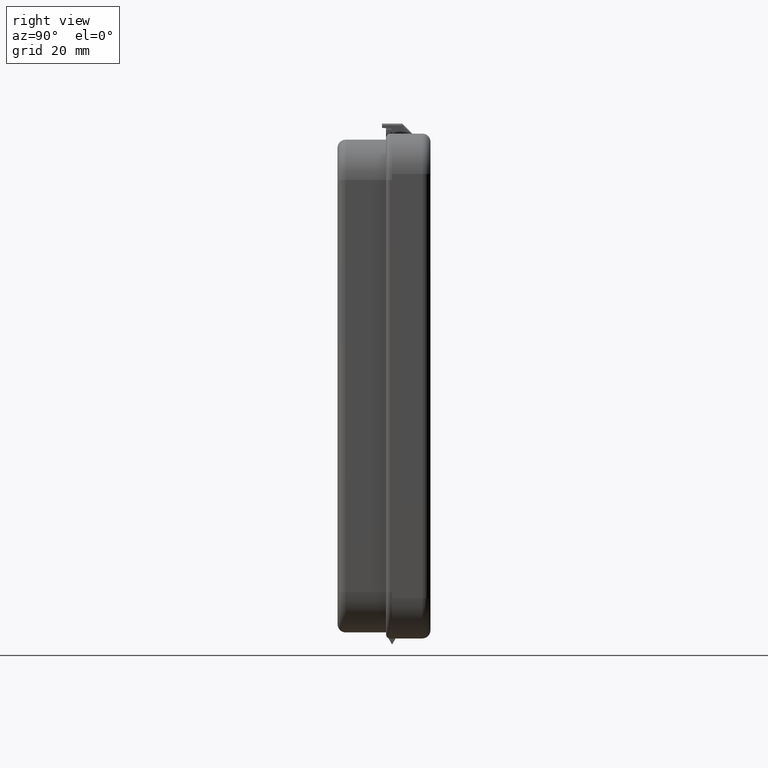
[diagram: clean part render]
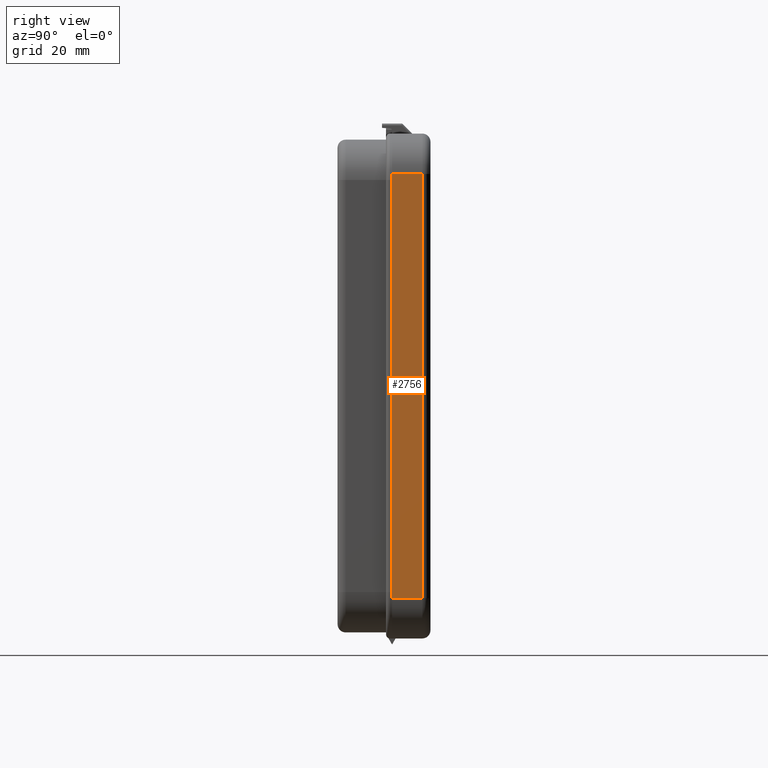
[diagram: same view with one face highlighted and labeled with its STEP entity id]
A machine part, right view. The second image highlights one B-rep face of the part: STEP entity #2756.
In plain terms, the highlighted planar face has unit normal (-1, 0, 0).
Its self-contained STEP definition (entity closure, byte-faithful):
#47 = CARTESIAN_POINT ( 'NONE',  ( 62.50000000000001421, 7.500000000000000000, 52.50000000000000711 ) ) ;
#84 = CARTESIAN_POINT ( 'NONE',  ( 62.49999999999998579, 0.0000000000000000000, -62.49999999999998579 ) ) ;
#99 = ORIENTED_EDGE ( 'NONE', *, *, #3484, .T. ) ;
#164 = CARTESIAN_POINT ( 'NONE',  ( 62.49999999999998579, 7.500000000000000000, -52.49999999999998579 ) ) ;
#277 = CARTESIAN_POINT ( 'NONE',  ( 62.50000000000001421, 7.500000000000000000, 52.50000000000000711 ) ) ;
#372 = EDGE_CURVE ( 'NONE', #3449, #3744, #2751, .T. ) ;
#380 = CARTESIAN_POINT ( 'NONE',  ( 62.50000000000001421, 0.0000000000000000000, 52.50000000000000711 ) ) ;
#409 = CARTESIAN_POINT ( 'NONE',  ( 62.49999999999998579, 9.499999999999998224, -52.49999999999998579 ) ) ;
#489 = VECTOR ( 'NONE', #1705, 1000.000000000000000 ) ;
#678 = ORIENTED_EDGE ( 'NONE', *, *, #2046, .T. ) ;
#889 = ORIENTED_EDGE ( 'NONE', *, *, #2918, .T. ) ;
#956 = CARTESIAN_POINT ( 'NONE',  ( 62.49999999999998579, 0.0000000000000000000, -52.49999999999998579 ) ) ;
#1251 = VECTOR ( 'NONE', #1361, 1000.000000000000000 ) ;
#1257 = VERTEX_POINT ( 'NONE', #47 ) ;
#1361 = DIRECTION ( 'NONE',  ( -0.0000000000000000000, 1.000000000000000000, -0.0000000000000000000 ) ) ;
#1630 = VECTOR ( 'NONE', #2040, 1000.000000000000000 ) ;
#1705 = DIRECTION ( 'NONE',  ( 2.220446049250313081E-16, -0.0000000000000000000, 1.000000000000000000 ) ) ;
#1816 = DIRECTION ( 'NONE',  ( 2.220446049250313081E-16, 0.0000000000000000000, 1.000000000000000000 ) ) ;
#1837 = EDGE_LOOP ( 'NONE', ( #2605, #99, #889, #678 ) ) ;
#2040 = DIRECTION ( 'NONE',  ( -2.220446049250313081E-16, -0.0000000000000000000, -1.000000000000000000 ) ) ;
#2043 = VECTOR ( 'NONE', #2639, 1000.000000000000000 ) ;
#2046 = EDGE_CURVE ( 'NONE', #3915, #3449, #3443, .T. ) ;
#2605 = ORIENTED_EDGE ( 'NONE', *, *, #372, .T. ) ;
#2639 = DIRECTION ( 'NONE',  ( 0.0000000000000000000, -1.000000000000000000, 0.0000000000000000000 ) ) ;
#2751 = LINE ( 'NONE', #409, #1251 ) ;
#2756 = ADVANCED_FACE ( 'NONE', ( #4160 ), #2819, .F. ) ;
#2819 = PLANE ( 'NONE',  #3093 ) ;
#2918 = EDGE_CURVE ( 'NONE', #1257, #3915, #3702, .T. ) ;
#2988 = LINE ( 'NONE', #277, #489 ) ;
#3093 = AXIS2_PLACEMENT_3D ( 'NONE', #3199, #3135, #1816 ) ;
#3135 = DIRECTION ( 'NONE',  ( -1.000000000000000000, 0.0000000000000000000, 2.220446049250313081E-16 ) ) ;
#3199 = CARTESIAN_POINT ( 'NONE',  ( 62.49999999999998579, 9.499999999999998224, -62.49999999999998579 ) ) ;
#3443 = LINE ( 'NONE', #84, #1630 ) ;
#3449 = VERTEX_POINT ( 'NONE', #956 ) ;
#3484 = EDGE_CURVE ( 'NONE', #3744, #1257, #2988, .T. ) ;
#3702 = LINE ( 'NONE', #3955, #2043 ) ;
#3744 = VERTEX_POINT ( 'NONE', #164 ) ;
#3915 = VERTEX_POINT ( 'NONE', #380 ) ;
#3955 = CARTESIAN_POINT ( 'NONE',  ( 62.50000000000001421, 9.499999999999998224, 52.50000000000000711 ) ) ;
#4160 = FACE_OUTER_BOUND ( 'NONE', #1837, .T. ) ;